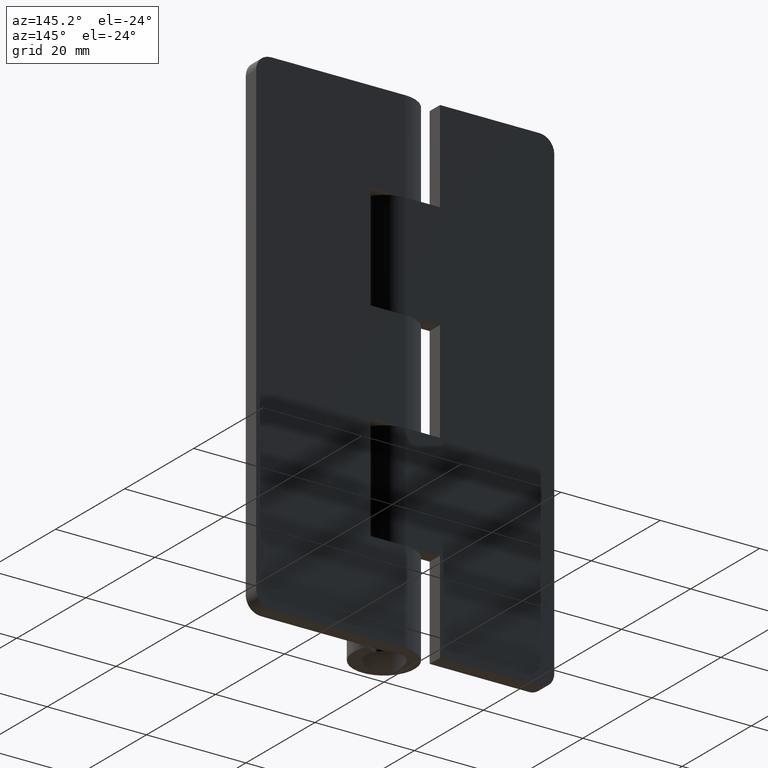
[diagram: clean part render]
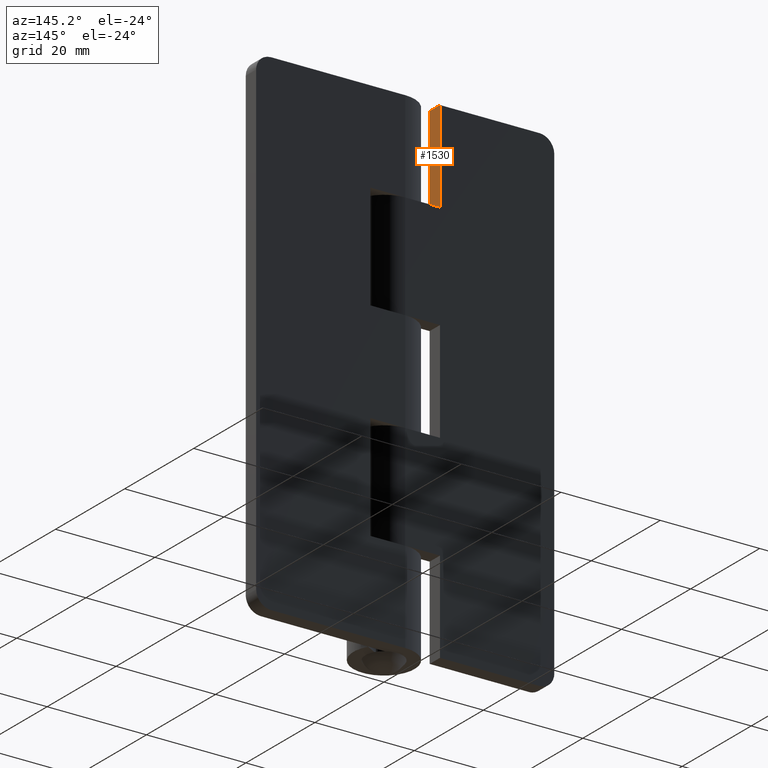
[diagram: same view with one face highlighted and labeled with its STEP entity id]
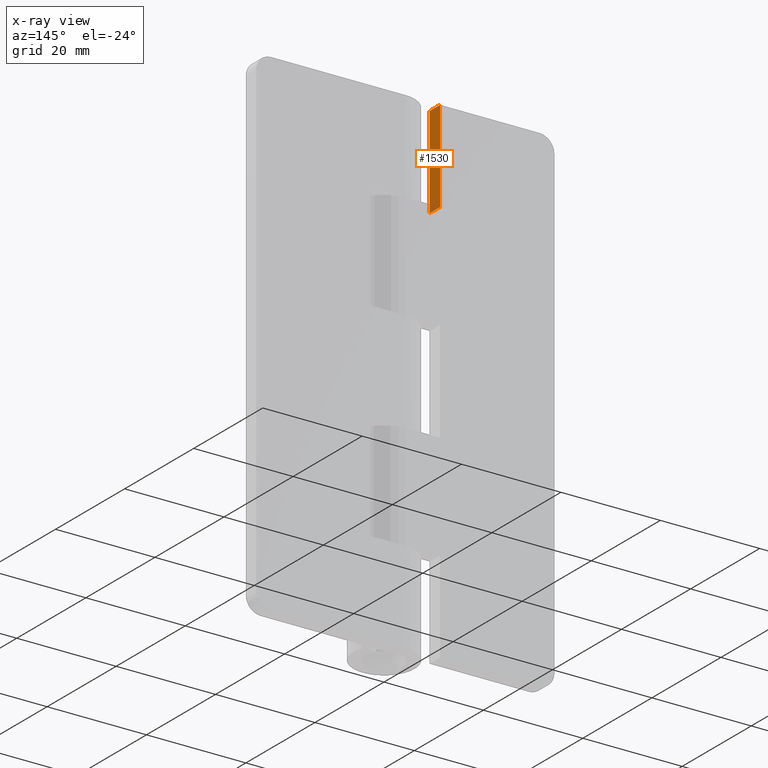
[diagram: x-ray of the same camera — body ghosted, the highlighted face saturated]
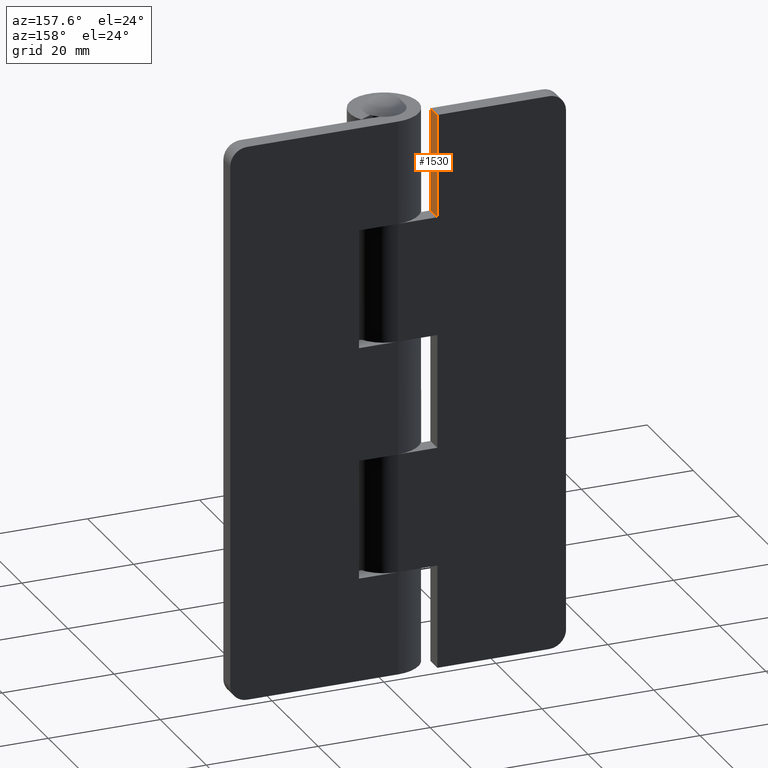
[diagram: same view with one face highlighted and labeled with its STEP entity id]
A machine part, auxiliary view. The second image highlights one B-rep face of the part: STEP entity #1530.
The next image is the same camera in x-ray: the body ghosted, the highlighted face saturated — about 0% of this face is hidden behind the body in this view.
A second angle (auxiliary view) of the same face is appended — the face is thin or edge-on in the first view.
In plain terms, the highlighted face is a freeform B-spline surface patch.
Its self-contained STEP definition (entity closure, byte-faithful):
#1453=CARTESIAN_POINT('',(-7.000000000000100,6.150000000000000,81.500000000000000));
#1454=VERTEX_POINT('',#1453);
#1460=CARTESIAN_POINT('',(-7.000000000000100,3.150000000000000,81.500000000000000));
#1461=VERTEX_POINT('',#1460);
#1462=CARTESIAN_POINT('',(-7.000000000000100,3.150000000000000,81.500000000000000));
#1463=CARTESIAN_POINT('',(-7.000000000000100,6.150000000000000,81.500000000000000));
#1464=QUASI_UNIFORM_CURVE('',1,(#1462,#1463),.UNSPECIFIED.,.F.,.U.);
#1465=EDGE_CURVE('',#1461,#1454,#1464,.T.);
#1503=CARTESIAN_POINT('',(-7.000000000000100,3.000150090300142,80.575925035856585));
#1504=CARTESIAN_POINT('',(-7.000000000000100,3.000150090300142,100.924075460352100));
#1505=CARTESIAN_POINT('',(-7.000000000000100,6.299850070632401,80.575925035856585));
#1506=CARTESIAN_POINT('',(-7.000000000000100,6.299850070632401,100.924075460352100));
#1507=B_SPLINE_SURFACE_WITH_KNOTS('',1,1,((#1503,#1505),(#1504,#1506)),.UNSPECIFIED.,.F.,.F.,.U.,(2,2),(2,2),(0.0,20.348150424495490),(0.0,3.299699980332258),.UNSPECIFIED.);
#1508=CARTESIAN_POINT('',(-7.000000000000100,3.150000000000000,100.0));
#1509=VERTEX_POINT('',#1508);
#1510=CARTESIAN_POINT('',(-7.000000000000100,3.150000000000000,100.0));
#1511=CARTESIAN_POINT('',(-7.000000000000100,3.150000000000000,81.500000000000000));
#1512=QUASI_UNIFORM_CURVE('',1,(#1510,#1511),.UNSPECIFIED.,.F.,.U.);
#1513=EDGE_CURVE('',#1509,#1461,#1512,.T.);
#1514=ORIENTED_EDGE('',*,*,#1513,.T.);
#1515=ORIENTED_EDGE('',*,*,#1465,.T.);
#1516=CARTESIAN_POINT('',(-7.000000000000100,6.150000000000000,100.0));
#1517=VERTEX_POINT('',#1516);
#1518=CARTESIAN_POINT('',(-7.000000000000100,6.150000000000000,81.500000000000000));
#1519=CARTESIAN_POINT('',(-7.000000000000100,6.150000000000000,100.0));
#1520=QUASI_UNIFORM_CURVE('',1,(#1518,#1519),.UNSPECIFIED.,.F.,.U.);
#1521=EDGE_CURVE('',#1454,#1517,#1520,.T.);
#1522=ORIENTED_EDGE('',*,*,#1521,.T.);
#1523=CARTESIAN_POINT('',(-7.000000000000100,3.150000000000000,100.0));
#1524=CARTESIAN_POINT('',(-7.000000000000100,6.150000000000000,100.0));
#1525=QUASI_UNIFORM_CURVE('',1,(#1523,#1524),.UNSPECIFIED.,.F.,.U.);
#1526=EDGE_CURVE('',#1509,#1517,#1525,.T.);
#1527=ORIENTED_EDGE('',*,*,#1526,.F.);
#1528=EDGE_LOOP('',(#1514,#1515,#1522,#1527));
#1529=FACE_OUTER_BOUND('',#1528,.T.);
#1530=ADVANCED_FACE('',(#1529),#1507,.F.);